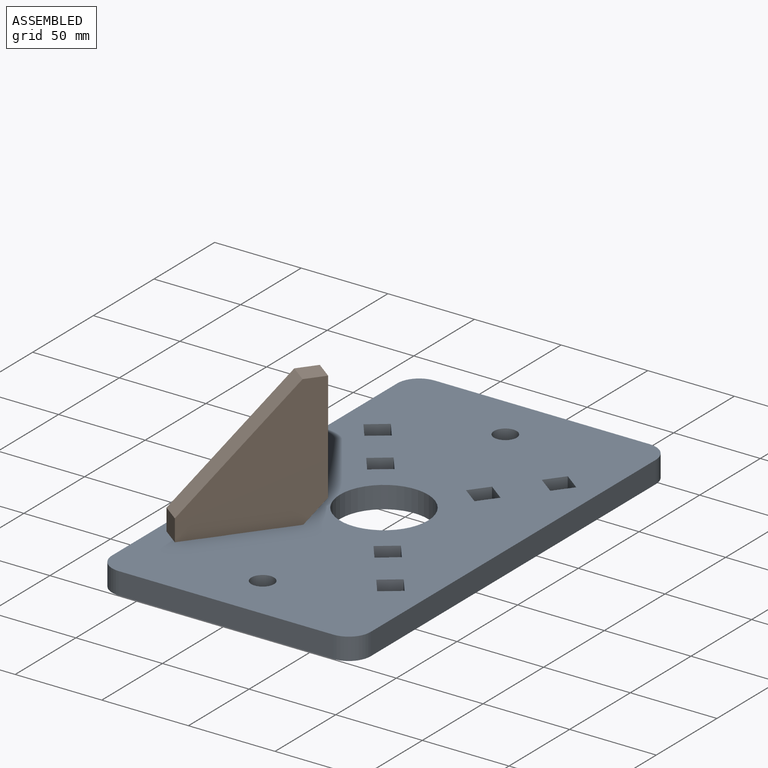
[diagram: assembled view]
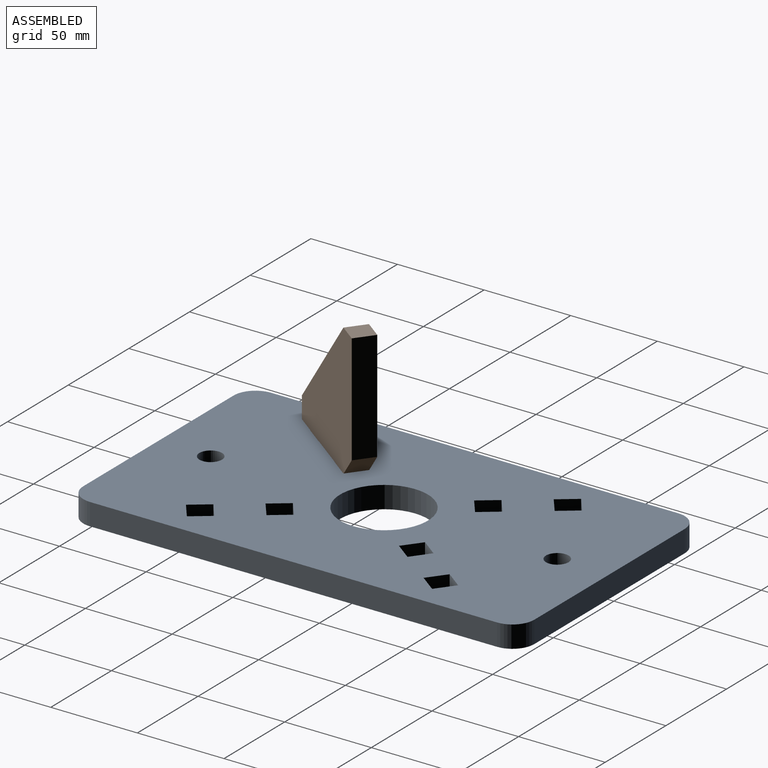
[diagram: assembled view, second angle]
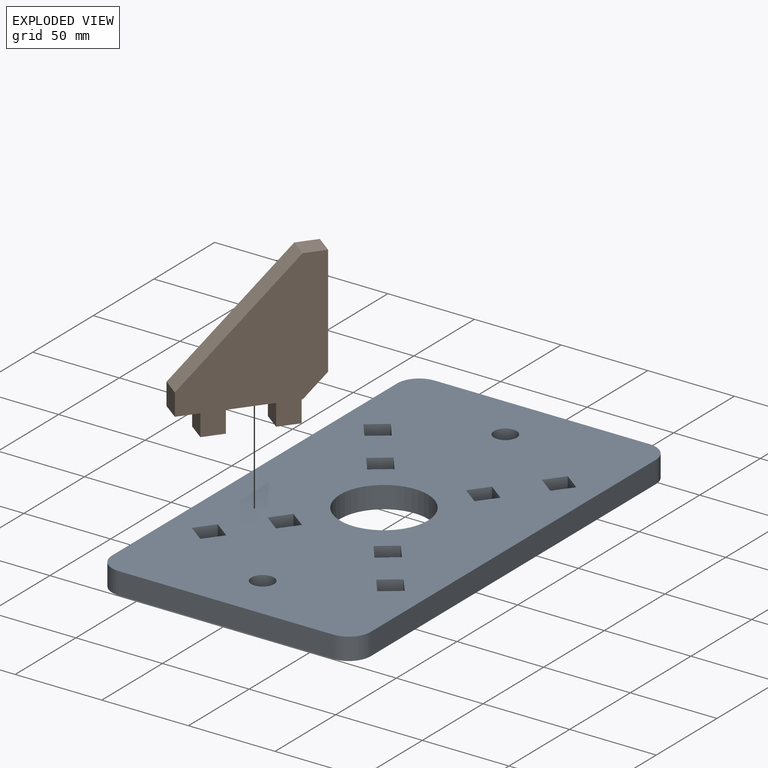
[diagram: exploded view]
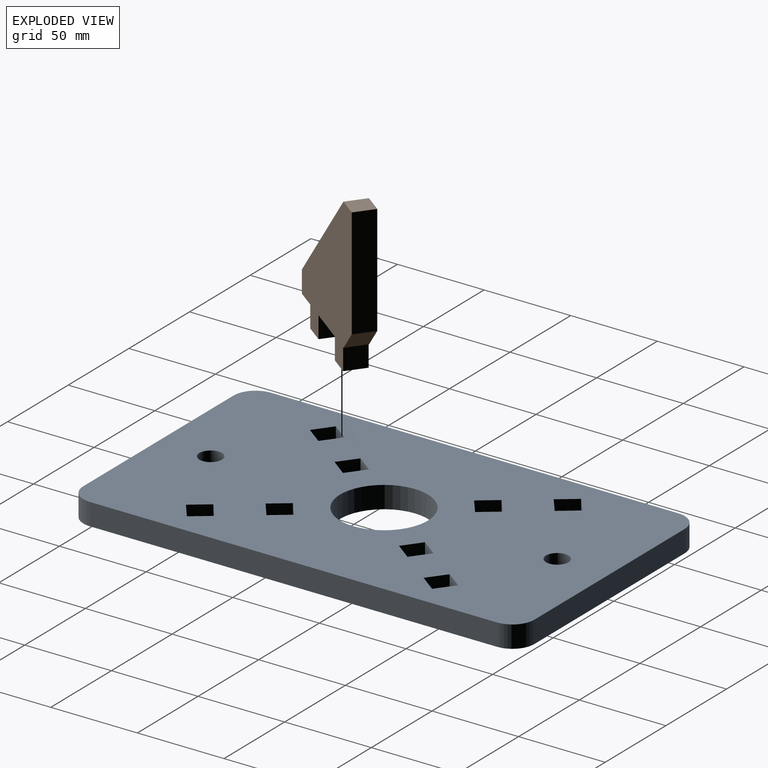
[diagram: exploded view, second angle]
ASSEMBLY  parts=2 mates=2
PART A: 45 faces, bbox 149.2x260.4x12.7 mm
  f0: plane 234.95x12.7mm, normal (1,0,0), area 2983.9mm2, adj f1,f31,f43,f44
  f1: cylinder r=12.7mm len=12.7mm, axis (0,0,1), area 253.4mm2, adj f0,f2,f43,f44
  f2: plane 123.83x12.7mm, normal (0,-1,0), area 1572.6mm2, adj f1,f3,f43,f44
  f3: cylinder r=12.7mm len=12.7mm, axis (0,0,1), area 253.4mm2, adj f2,f4,f43,f44
  f4: plane 234.95x12.7mm, normal (-1,0,0), area 2983.9mm2, adj f3,f5,f43,f44
  f5: cylinder r=12.7mm len=12.7mm, axis (0,0,1), area 253.4mm2, adj f4,f6,f43,f44
  f6: plane 123.83x12.7mm, normal (0,1,0), area 1572.6mm2, adj f5,f31,f43,f44
  f7: plane 12.7x10.35mm, normal (0.6,0.8,0), area 164.5mm2, adj f8,f32,f43,f44
  f8: plane 12.7x10.35mm, normal (-0.8,0.6,0), area 164.5mm2, adj f7,f9,f43,f44
  f9: plane 12.7x10.35mm, normal (-0.6,-0.8,0), area 164.5mm2, adj f8,f32,f43,f44
  f10: plane 12.7x10.35mm, normal (0.6,-0.8,0), area 164.5mm2, adj f11,f33,f43,f44
  f11: plane 12.7x10.35mm, normal (0.8,0.6,0), area 164.5mm2, adj f10,f12,f43,f44
  f12: plane 12.7x10.35mm, normal (-0.6,0.8,0), area 164.5mm2, adj f11,f33,f43,f44
  f13: plane 12.7x10.35mm, normal (0.6,0.8,0), area 164.5mm2, adj f14,f34,f43,f44
  f14: plane 12.7x10.35mm, normal (-0.8,0.6,0), area 164.5mm2, adj f13,f15,f43,f44
  f15: plane 12.7x10.35mm, normal (-0.6,-0.8,0), area 164.5mm2, adj f14,f34,f43,f44
  f16: plane 12.7x10.35mm, normal (-0.6,0.8,0), area 164.5mm2, adj f17,f35,f43,f44
  f17: plane 12.7x10.35mm, normal (-0.8,-0.6,0), area 164.5mm2, adj f16,f18,f43,f44
  f18: plane 12.7x10.35mm, normal (0.6,-0.8,0), area 164.5mm2, adj f17,f35,f43,f44
  f19: plane 12.7x10.35mm, normal (0.8,0.6,0), area 164.5mm2, adj f20,f38,f43,f44
  f20: plane 12.7x10.35mm, normal (-0.6,0.8,0), area 164.5mm2, adj f19,f21,f43,f44
  f21: plane 12.7x10.35mm, normal (-0.8,-0.6,0), area 164.5mm2, adj f20,f38,f43,f44
  f22: plane 12.7x10.35mm, normal (0.6,0.8,0), area 164.5mm2, adj f23,f39,f43,f44
  f23: plane 12.7x10.35mm, normal (-0.8,0.6,0), area 164.5mm2, adj f22,f24,f43,f44
  f24: plane 12.7x10.35mm, normal (-0.6,-0.8,0), area 164.5mm2, adj f23,f39,f43,f44
  f25: plane 12.7x10.35mm, normal (0.6,-0.8,0), area 164.5mm2, adj f26,f40,f43,f44
  f26: plane 12.7x10.35mm, normal (0.8,0.6,0), area 164.5mm2, adj f25,f27,f43,f44
  f27: plane 12.7x10.35mm, normal (-0.6,0.8,0), area 164.5mm2, adj f26,f40,f43,f44
  f28: plane 12.7x10.35mm, normal (0.8,-0.6,0), area 164.5mm2, adj f29,f41,f43,f44
  f29: plane 12.7x10.35mm, normal (0.6,0.8,0), area 164.5mm2, adj f28,f30,f43,f44
  f30: plane 12.7x10.35mm, normal (-0.8,0.6,0), area 164.5mm2, adj f29,f41,f43,f44
  f31: cylinder r=12.7mm len=12.7mm, axis (0,0,1), area 253.4mm2, adj f0,f6,f43,f44
  f32: plane 12.7x10.35mm, normal (0.8,-0.6,0), area 164.5mm2, adj f7,f9,f43,f44
  f33: plane 12.7x10.35mm, normal (-0.8,-0.6,0), area 164.5mm2, adj f10,f12,f43,f44
  f34: plane 12.7x10.35mm, normal (0.8,-0.6,0), area 164.5mm2, adj f13,f15,f43,f44
  f35: plane 12.7x10.35mm, normal (0.8,0.6,0), area 164.5mm2, adj f16,f18,f43,f44
  f36: cylinder r=6.54mm len=13.08mm, axis (0,0,1), area 521.9mm2, adj f43,f44
  f37: cylinder r=6.54mm len=13.08mm, axis (0,0,1), area 521.9mm2, adj f43,f44
  f38: plane 12.7x10.35mm, normal (0.6,-0.8,0), area 164.5mm2, adj f19,f21,f43,f44
  f39: plane 12.7x10.35mm, normal (0.8,-0.6,0), area 164.5mm2, adj f22,f24,f43,f44
  f40: plane 12.7x10.35mm, normal (-0.8,-0.6,0), area 164.5mm2, adj f25,f27,f43,f44
  f41: plane 12.7x10.35mm, normal (-0.6,-0.8,0), area 164.5mm2, adj f28,f30,f43,f44
  f42: cylinder r=25.4mm len=50.8mm, axis (0,0,1), area 2026.8mm2, adj f43,f44
  f43: plane 260.35x149.23mm, normal (0,0,-1), area 35074.2mm2, adj f0,f1,f2,f3,f4,f5,f6,f7
  f44: plane 260.35x149.23mm, normal (0,0,1), area 35074.2mm2, adj f0,f1,f2,f3,f4,f5,f6,f7
PART B: 16 faces, bbox 12.7x76.2x88.6 mm
  f0: plane 63.63x12.7mm, normal (0,1,0), area 808.1mm2, adj f1,f13,f14,f15
  f1: plane 12.7x12.7mm, normal (0,0,1), area 161.3mm2, adj f0,f2,f14,f15
  f2: plane 63.5x63.5mm, normal (0,-0.71,0.71), area 1140.5mm2, adj f1,f3,f14,f15
  f3: plane 12.7x12.7mm, normal (0,-1,0), area 161.3mm2, adj f2,f4,f14,f15
  f4: plane 12.7x12.7mm, normal (0,0,-1), area 161.3mm2, adj f3,f5,f14,f15
  f5: plane 12.7x12.45mm, normal (0,-1,0), area 158.1mm2, adj f4,f6,f14,f15
  f6: plane 12.7x12.7mm, normal (0,0,-1), area 161.3mm2, adj f5,f7,f14,f15
  f7: plane 12.7x12.45mm, normal (0,1,0), area 158.1mm2, adj f6,f8,f14,f15
  f8: plane 24.96x12.7mm, normal (0,0,-1), area 316.9mm2, adj f7,f9,f14,f15
  f9: plane 12.7x12.45mm, normal (0,-1,0), area 158.1mm2, adj f8,f10,f14,f15
  f10: plane 12.7x12.7mm, normal (0,0,-1), area 161.3mm2, adj f9,f11,f14,f15
  f11: plane 12.7x12.45mm, normal (0,1,0), area 158.1mm2, adj f10,f12,f14,f15
  f12: plane 12.7x0.57mm, normal (0,0,-1), area 7.3mm2, adj f11,f13,f14,f15
  f13: plane 12.7x12.57mm, normal (0,0.71,-0.71), area 225.8mm2, adj f0,f12,f14,f15
  f14: plane 88.65x76.2mm, normal (1,0,0), area 4027.4mm2, adj f0,f1,f2,f3,f4,f5,f6,f7
  f15: plane 88.65x76.2mm, normal (-1,0,0), area 4027.4mm2, adj f0,f1,f2,f3,f4,f5,f6,f7
PLACE A rot(axis=(-0.46,-0.47,-0.75),0deg) t=(-194.41,-377.65,254.41)mm
PLACE B rot(axis=(0,0,-1),37deg) t=(-13.9,-262.38,-16.21)mm
MATE revolute A.f43 <-> B.f6  axis (0,0,-1) through (-145.16,-447.13,-113.89)mm
MATE revolute A.f43 <-> B.f10  axis (0,0,-1) through (-122.5,-417.06,-113.89)mm
